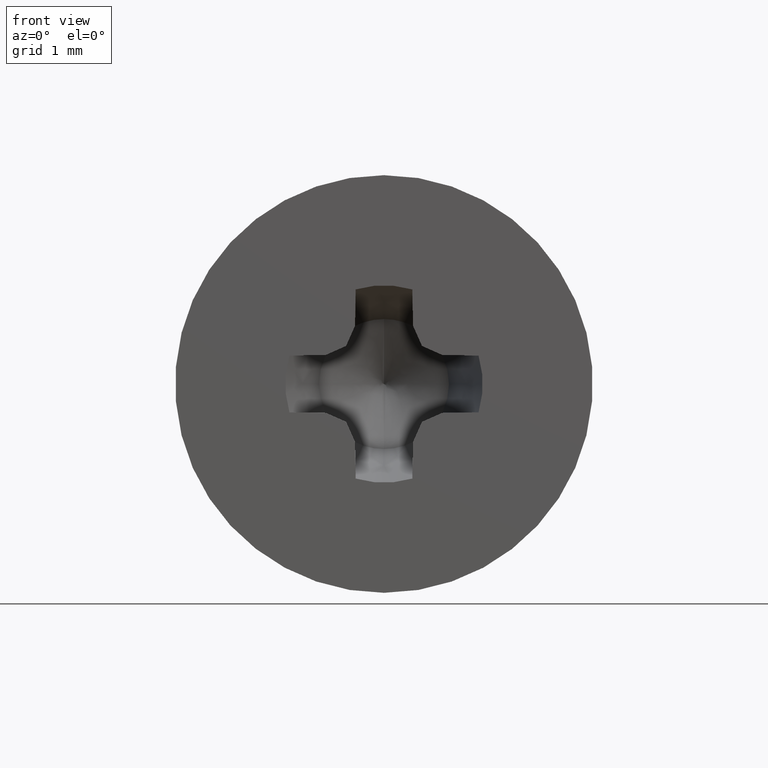
[diagram: clean part render]
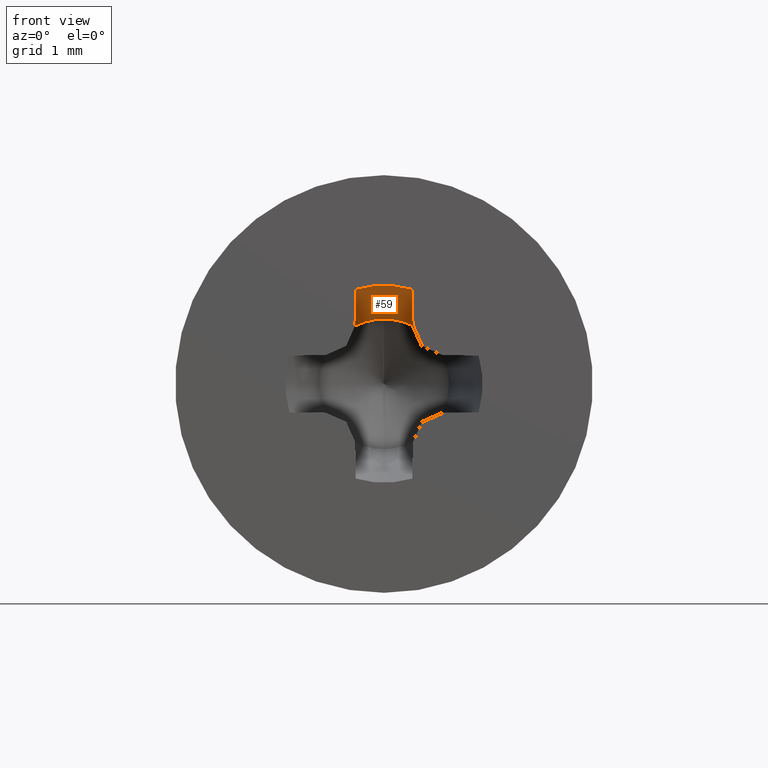
[diagram: same view with one face highlighted and labeled with its STEP entity id]
A machine part, front view. The second image highlights one B-rep face of the part: STEP entity #59.
In plain terms, the highlighted face is a freeform B-spline surface patch.
Its self-contained STEP definition (entity closure, byte-faithful):
#59=ADVANCED_FACE('',(#262),#261,.F.);
#261=( BOUNDED_SURFACE() B_SPLINE_SURFACE( 2,1,((#464,#465),(#466,#467),(#468,#469)), .UNSPECIFIED.,.F.,.F.,.F.) B_SPLINE_SURFACE_WITH_KNOTS((3,3),(2,2),(0.00000000000E+00,1.00000000000E+00),(0.00000000000E+00,1.00000000000E+00), .UNSPECIFIED. ) GEOMETRIC_REPRESENTATION_ITEM() RATIONAL_B_SPLINE_SURFACE(((1.00000000000E+00,1.00000000000E+00),(8.94749471779E-01,8.94749471779E-01),(1.00000000000E+00,1.00000000000E+00))) REPRESENTATION_ITEM('') SURFACE() );
#262=FACE_OUTER_BOUND('',#470,.T.);
#464=CARTESIAN_POINT('',(3.81921402533E-01,2.00126283588E-01,7.65103363488E-01));
#465=CARTESIAN_POINT('',(5.80745063328E-01,-7.00607308886E-01,1.16340691654E+00));
#466=CARTESIAN_POINT('',(5.91765175733E-05,2.00126283588E-01,9.55719904852E-01));
#467=CARTESIAN_POINT('',(8.99830965684E-05,-7.00607308886E-01,1.45325612282E+00));
#468=CARTESIAN_POINT('',(-3.81826651861E-01,2.00126283588E-01,7.65150653442E-01));
#469=CARTESIAN_POINT('',(-5.80600986602E-01,-7.00607308886E-01,1.16347882507E+00));
#470=EDGE_LOOP('',(#614,#615,#616,#617,#618));
#614=ORIENTED_EDGE('',*,*,#671,.F.);
#615=ORIENTED_EDGE('',*,*,#720,.F.);
#616=ORIENTED_EDGE('',*,*,#721,.F.);
#617=ORIENTED_EDGE('',*,*,#722,.F.);
#618=ORIENTED_EDGE('',*,*,#707,.T.);
#671=EDGE_CURVE('',#761,#781,#782,.T.);
#707=EDGE_CURVE('',#1021,#781,#1022,.T.);
#720=EDGE_CURVE('',#1108,#761,#1109,.T.);
#721=EDGE_CURVE('',#1115,#1108,#1116,.T.);
#722=EDGE_CURVE('',#1021,#1115,#1122,.T.);
#761=VERTEX_POINT('',#1201);
#781=VERTEX_POINT('',#1213);
#782=(BOUNDED_CURVE() B_SPLINE_CURVE(3,(#1214,#1215,#1216,#1217),.UNSPECIFIED.,.F.,.F.) B_SPLINE_CURVE_WITH_KNOTS((4,4),(2.28899350122E-07,1.01965903334E-03),.UNSPECIFIED.) CURVE() GEOMETRIC_REPRESENTATION_ITEM() RATIONAL_B_SPLINE_CURVE((1.00000000000E+00,1.00000000000E+00,1.00000000000E+00,1.00000000000E+00)) REPRESENTATION_ITEM('') );
#1021=VERTEX_POINT('',#1363);
#1022=CIRCLE('',#1367,1.30000000000E+00);
#1108=VERTEX_POINT('',#1420);
#1109=CIRCLE('',#1424,8.55430032422E-01);
#1115=VERTEX_POINT('',#1425);
#1116=CIRCLE('',#1429,8.55430032422E-01);
#1122=(BOUNDED_CURVE() B_SPLINE_CURVE(3,(#1430,#1431,#1432,#1433),.UNSPECIFIED.,.F.,.F.) B_SPLINE_CURVE_WITH_KNOTS((4,4),(2.25290084571E-07,1.01965542407E-03),.UNSPECIFIED.) CURVE() GEOMETRIC_REPRESENTATION_ITEM() RATIONAL_B_SPLINE_CURVE((1.00000000000E+00,1.00000000000E+00,1.00000000000E+00,1.00000000000E+00)) REPRESENTATION_ITEM('') );
#1201=CARTESIAN_POINT('',(-3.81326433417E-01,1.99518974701E-01,7.65735392643E-01));
#1213=CARTESIAN_POINT('',(-3.72954671907E-01,-7.00000000000E-01,1.24535328831E+00));
#1214=CARTESIAN_POINT('',(-3.81326433417E-01,1.99518974701E-01,7.65735392643E-01));
#1215=CARTESIAN_POINT('',(-3.78439931839E-01,-9.73899157988E-02,9.31102957301E-01));
#1216=CARTESIAN_POINT('',(-3.75685547962E-01,-3.98335804523E-01,1.08890150392E+00));
#1217=CARTESIAN_POINT('',(-3.72954671907E-01,-7.00000000000E-01,1.24535328831E+00));
#1363=CARTESIAN_POINT('',(3.72954671908E-01,-7.00000000000E-01,1.24535328831E+00));
#1364=CARTESIAN_POINT('',(0.00000000000E+00,-7.00000000000E-01,0.00000000000E+00));
#1365=DIRECTION('',(0.00000000000E+00,-1.00000000000E+00,0.00000000000E+00));
#1366=DIRECTION('',(2.86888209160E-01,0.00000000000E+00,9.57964067930E-01));
#1367=AXIS2_PLACEMENT_3D('',#1364,#1365,#1366);
#1420=CARTESIAN_POINT('',(9.68953410185E-14,1.99518974701E-01,8.55430032422E-01));
#1421=CARTESIAN_POINT('',(0.00000000000E+00,1.99518974701E-01,0.00000000000E+00));
#1422=DIRECTION('',(0.00000000000E+00,-1.00000000000E+00,0.00000000000E+00));
#1423=DIRECTION('',(4.45771622417E-01,0.00000000000E+00,8.95146725765E-01));
#1424=AXIS2_PLACEMENT_3D('',#1421,#1422,#1423);
#1425=CARTESIAN_POINT('',(3.81326433417E-01,1.99518974701E-01,7.65735392643E-01));
#1426=CARTESIAN_POINT('',(0.00000000000E+00,1.99518974701E-01,0.00000000000E+00));
#1427=DIRECTION('',(0.00000000000E+00,-1.00000000000E+00,0.00000000000E+00));
#1428=DIRECTION('',(4.45771622417E-01,0.00000000000E+00,8.95146725765E-01));
#1429=AXIS2_PLACEMENT_3D('',#1426,#1427,#1428);
#1430=CARTESIAN_POINT('',(3.72954671908E-01,-7.00000000000E-01,1.24535328831E+00));
#1431=CARTESIAN_POINT('',(3.75685547962E-01,-3.98335804523E-01,1.08890150392E+00));
#1432=CARTESIAN_POINT('',(3.78439931839E-01,-9.73899157989E-02,9.31102957301E-01));
#1433=CARTESIAN_POINT('',(3.81326433417E-01,1.99518974701E-01,7.65735392643E-01));